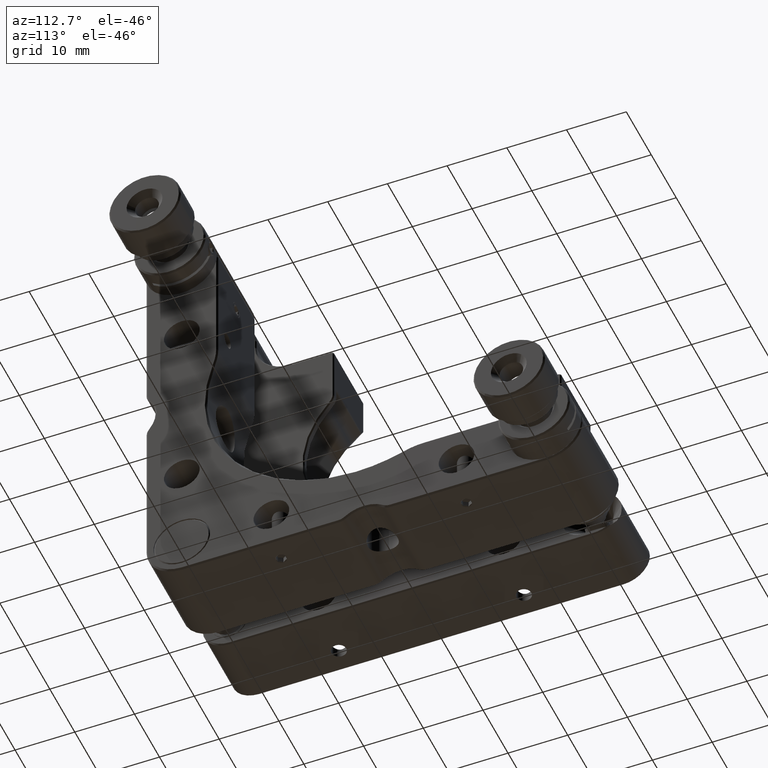
[diagram: clean part render]
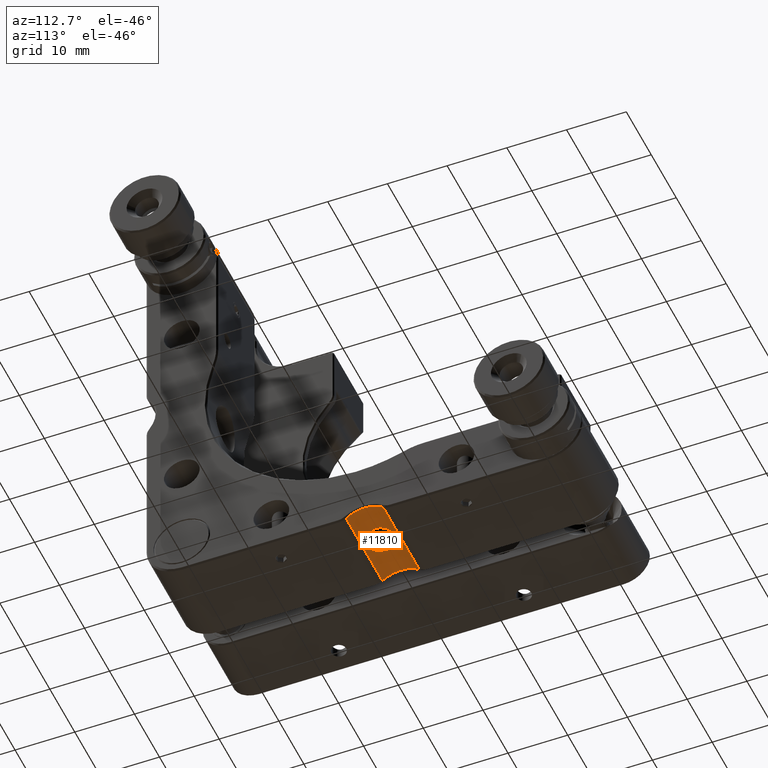
[diagram: same view with one face highlighted and labeled with its STEP entity id]
A machine part, auxiliary view. The second image highlights one B-rep face of the part: STEP entity #11810.
In plain terms, the highlighted cylindrical surface (edge-blend (fillet) strip) has radius 5 mm, axis along (1, -0, -0).
Its self-contained STEP definition (entity closure, byte-faithful):
#108 = CARTESIAN_POINT ( 'NONE',  ( 9.187188013801176112, -0.05283407788156702783, 16.83953641697612369 ) ) ;
#278 = VECTOR ( 'NONE', #5974, 1000.000000000000000 ) ;
#370 = EDGE_CURVE ( 'NONE', #15149, #10453, #15140, .T. ) ;
#440 = ORIENTED_EDGE ( 'NONE', *, *, #7388, .T. ) ;
#589 = CARTESIAN_POINT ( 'NONE',  ( 9.507574504345543076, -1.650234098752397127, 16.99153709374237309 ) ) ;
#734 = CARTESIAN_POINT ( 'NONE',  ( 9.524380677085801494, -1.485315575609315930, 16.99999999999998934 ) ) ;
#738 = ORIENTED_EDGE ( 'NONE', *, *, #13335, .F. ) ;
#862 = VERTEX_POINT ( 'NONE', #4042 ) ;
#897 = AXIS2_PLACEMENT_3D ( 'NONE', #14599, #5420, #13742 ) ;
#1034 = CARTESIAN_POINT ( 'NONE',  ( 5.029910170563820060, -2.858176075366870350, 16.76275093176226960 ) ) ;
#1043 = CARTESIAN_POINT ( 'NONE',  ( 8.904703386388161945, 0.3383471481233426559, 16.71958017371221672 ) ) ;
#1134 = B_SPLINE_CURVE_WITH_KNOTS ( 'NONE', 3,
 ( #10601, #8409, #10832, #12973, #3697, #7151, #4578, #1205, #7309, #4879, #2450, #6042, #8486, #13204, #2209, #3392, #9348, #8184, #12094, #2367, #13048, #5898, #6990, #1043, #2289, #108, #4654, #5820, #9650, #3469, #8255, #14459 ),
 .UNSPECIFIED., .F., .F.,
 ( 4, 2, 2, 2, 2, 2, 2, 2, 2, 2, 2, 2, 2, 2, 2, 4 ),
 ( 0.007952457144059373387, 0.008448620157723641874, 0.008944783171387912096, 0.009440946185052180584, 0.009937109198716449071, 0.01043327221238071929, 0.01092943522604498778, 0.01142559823970925800, 0.01192176125337352649, 0.01241792426703779498, 0.01291408728070206346, 0.01390641330803060391, 0.01440257632169487760, 0.01489873933535915129, 0.01539490234902342498, 0.01589106536268769868 ),
 .UNSPECIFIED. ) ;
#1205 = CARTESIAN_POINT ( 'NONE',  ( 5.041222260438631864, 0.2136643951420795773, 16.76196354994728566 ) ) ;
#1206 = CARTESIAN_POINT ( 'NONE',  ( -0.4756193229141988943, -4.410019247611930204, 15.92857142857143060 ) ) ;
#1543 = CARTESIAN_POINT ( 'NONE',  ( -0.4756193229141988943, 1.775876493705471182, 15.92857142857143060 ) ) ;
#1597 = ORIENTED_EDGE ( 'NONE', *, *, #14563, .F. ) ;
#1872 = CARTESIAN_POINT ( 'NONE',  ( 14.27438067708578728, -4.410019247611930204, 15.92857142857143060 ) ) ;
#2048 = CARTESIAN_POINT ( 'NONE',  ( 5.906906470515533414, -3.559430608565857579, 16.46955614393485590 ) ) ;
#2202 = CARTESIAN_POINT ( 'NONE',  ( 5.370206976171012059, -3.198410910481542579, 16.63414086880752407 ) ) ;
#2209 = CARTESIAN_POINT ( 'NONE',  ( 6.363823616574082465, 1.099817325082050878, 16.37722421181168642 ) ) ;
#2249 = DIRECTION ( 'NONE',  ( -1.000000000000000000, -0.000000000000000000, -0.000000000000000000 ) ) ;
#2289 = CARTESIAN_POINT ( 'NONE',  ( 9.006742654885655952, 0.2146833400583695595, 16.76163167060564518 ) ) ;
#2367 = CARTESIAN_POINT ( 'NONE',  ( 7.680103842979014495, 1.101102801903699469, 16.37651042211203389 ) ) ;
#2450 = CARTESIAN_POINT ( 'NONE',  ( 5.496426341876877508, 0.6682302613748745124, 16.59002919120309016 ) ) ;
#2479 = CARTESIAN_POINT ( 'NONE',  ( -0.2256193229141847945, -4.410019247611930204, 15.92857142857143060 ) ) ;
#2749 = CIRCLE ( 'NONE', #15014, 4.999999999999997335 ) ;
#2799 = LINE ( 'NONE', #1543, #9331 ) ;
#3040 = VERTEX_POINT ( 'NONE', #2479 ) ;
#3167 = EDGE_CURVE ( 'NONE', #862, #15149, #2799, .T. ) ;
#3295 = CARTESIAN_POINT ( 'NONE',  ( 14.27438067708578728, -1.317071376953229622, 11.99999999999999645 ) ) ;
#3309 = CARTESIAN_POINT ( 'NONE',  ( 4.844484607941272003, -2.583552583517656487, 16.84660886903362709 ) ) ;
#3383 = CARTESIAN_POINT ( 'NONE',  ( 4.540749121589796822, -1.647763077172534896, 16.99175357950216636 ) ) ;
#3392 = CARTESIAN_POINT ( 'NONE',  ( 6.689953932519149049, 1.166040658524874818, 16.33999970250690836 ) ) ;
#3461 = CARTESIAN_POINT ( 'NONE',  ( 8.140534491773340875, -3.559962520653151330, 16.46927759592006879 ) ) ;
#3469 = CARTESIAN_POINT ( 'NONE',  ( 9.507123736127855551, -0.9803015213844314957, 16.99131096701585264 ) ) ;
#3697 = CARTESIAN_POINT ( 'NONE',  ( 4.655335511285953132, -0.5016585994929455561, 16.93550312343005970 ) ) ;
#4041 = CARTESIAN_POINT ( 'NONE',  ( 9.524380677085847680, -1.317071376953222739, 17.00000000000001421 ) ) ;
#4042 = CARTESIAN_POINT ( 'NONE',  ( -0.2256193229141847945, 1.775876493705471182, 15.92857142857143060 ) ) ;
#4180 = CARTESIAN_POINT ( 'NONE',  ( 8.282399793229510365, -3.483546098511181910, 16.50735166074635529 ) ) ;
#4221 = VERTEX_POINT ( 'NONE', #4041 ) ;
#4578 = CARTESIAN_POINT ( 'NONE',  ( 4.860796699807465870, -0.05414870206169488526, 16.83988379739055929 ) ) ;
#4654 = CARTESIAN_POINT ( 'NONE',  ( 9.266111511468990258, -0.1984549914249568447, 16.87567863888140707 ) ) ;
#4879 = CARTESIAN_POINT ( 'NONE',  ( 5.372842536461467589, 0.5666036594085024358, 16.63319344883835527 ) ) ;
#4881 = LINE ( 'NONE', #1206, #278 ) ;
#4900 = ORIENTED_EDGE ( 'NONE', *, *, #12396, .T. ) ;
#4972 = AXIS2_PLACEMENT_3D ( 'NONE', #5380, #6543, #6471 ) ;
#5074 = DIRECTION ( 'NONE',  ( 1.000000000000000000, -0.000000000000000000, -0.000000000000000000 ) ) ;
#5210 = CARTESIAN_POINT ( 'NONE',  ( 9.202555227483081524, -2.587026505532279419, 16.84581432591586747 ) ) ;
#5366 = CARTESIAN_POINT ( 'NONE',  ( 8.676660934519397017, -3.200065757834421820, 16.63346394425556340 ) ) ;
#5380 = CARTESIAN_POINT ( 'NONE',  ( -0.4756193229141988943, -1.317071376953229622, 11.99999999999999645 ) ) ;
#5420 = DIRECTION ( 'NONE',  ( -1.000000000000000000, -0.000000000000000000, -0.000000000000000000 ) ) ;
#5820 = CARTESIAN_POINT ( 'NONE',  ( 9.392564128582717942, -0.4995342879763270960, 16.93509654573889023 ) ) ;
#5898 = CARTESIAN_POINT ( 'NONE',  ( 8.290306580744845277, 0.8634778760426691235, 16.50171831003563483 ) ) ;
#5974 = DIRECTION ( 'NONE',  ( -1.000000000000000000, 0.000000000000000000, 0.000000000000000000 ) ) ;
#6042 = CARTESIAN_POINT ( 'NONE',  ( 5.764479923734036504, 0.8482732000911874515, 16.50789013108228787 ) ) ;
#6066 = EDGE_CURVE ( 'NONE', #3040, #11842, #2749, .T. ) ;
#6471 = DIRECTION ( 'NONE',  ( 0.000000000000000000, 0.000000000000000000, -1.000000000000000000 ) ) ;
#6543 = DIRECTION ( 'NONE',  ( 1.000000000000000000, -0.000000000000000000, -0.000000000000000000 ) ) ;
#6756 = CARTESIAN_POINT ( 'NONE',  ( 5.496090451325534865, -3.302135005388141309, 16.59013565034084081 ) ) ;
#6908 = CARTESIAN_POINT ( 'NONE',  ( 7.357280187397051030, -3.800308130907962045, 16.33992420980553106 ) ) ;
#6923 = VERTEX_POINT ( 'NONE', #8356 ) ;
#6982 = CARTESIAN_POINT ( 'NONE',  ( 4.655787792547534387, -2.133311615503040937, 16.93529633527371914 ) ) ;
#6990 = CARTESIAN_POINT ( 'NONE',  ( 8.562179957496745430, 0.6802441490233531729, 16.59022011746164083 ) ) ;
#7036 = DIRECTION ( 'NONE',  ( 0.000000000000000000, 1.778091562876228061E-15, -1.000000000000000000 ) ) ;
#7151 = CARTESIAN_POINT ( 'NONE',  ( 4.783182454491893942, -0.1971144481889856304, 16.87542670509425946 ) ) ;
#7309 = CARTESIAN_POINT ( 'NONE',  ( 5.145325685361611612, 0.3397213712882817260, 16.71908369986646647 ) ) ;
#7388 = EDGE_CURVE ( 'NONE', #10453, #3040, #4881, .T. ) ;
#7695 = B_SPLINE_CURVE_WITH_KNOTS ( 'NONE', 3,
 ( #8878, #734, #589, #12347, #7787, #5210, #9981, #5366, #10129, #4180, #3461, #11852, #14062, #6908, #14139, #8247, #15147, #11541, #13988, #2048, #12966, #6756, #2202, #1034, #3309, #6982, #11772, #3383, #8016, #8100 ),
 .UNSPECIFIED., .F., .F.,
 ( 4, 2, 2, 2, 2, 2, 2, 2, 2, 2, 2, 2, 2, 2, 4 ),
 ( 1.705336630678629287E-17, 0.0004970285715037277502, 0.0009940571430074385869, 0.001988114286014860694, 0.002485142857518570555, 0.002982171429022280416, 0.003479200000525990277, 0.003976228572029700571, 0.004473257143533410432, 0.004970285715037120293, 0.005467314286540830154, 0.005964342858044540015, 0.006958400001051957134, 0.007455428572555665261, 0.007952457144059373387 ),
 .UNSPECIFIED. ) ;
#7787 = CARTESIAN_POINT ( 'NONE',  ( 9.392752186882823651, -2.134153987056042645, 16.93518506600628726 ) ) ;
#8016 = CARTESIAN_POINT ( 'NONE',  ( 4.524380677085800606, -1.483066368061964013, 16.99999999999999289 ) ) ;
#8100 = CARTESIAN_POINT ( 'NONE',  ( 4.524380677085802382, -1.317071376953230288, 16.99999999999999289 ) ) ;
#8109 = ORIENTED_EDGE ( 'NONE', *, *, #3167, .T. ) ;
#8184 = CARTESIAN_POINT ( 'NONE',  ( 7.187019390578086586, 1.183106149572903387, 16.33002452401493798 ) ) ;
#8247 = CARTESIAN_POINT ( 'NONE',  ( 6.860415266733355111, -3.817230922111482183, 16.33003490553963388 ) ) ;
#8255 = CARTESIAN_POINT ( 'NONE',  ( 9.524380677085803271, -1.149120169673167213, 16.99999999999999645 ) ) ;
#8356 = CARTESIAN_POINT ( 'NONE',  ( 4.524380677085802382, -1.317071376953230288, 16.99999999999999289 ) ) ;
#8409 = CARTESIAN_POINT ( 'NONE',  ( 4.524380677085801494, -1.151365460304396571, 16.99999999999999645 ) ) ;
#8486 = CARTESIAN_POINT ( 'NONE',  ( 5.909037274277778806, 0.9262010811333457605, 16.46908353628975519 ) ) ;
#8878 = CARTESIAN_POINT ( 'NONE',  ( 9.524380677085847680, -1.317071376953222739, 17.00000000000001421 ) ) ;
#9331 = VECTOR ( 'NONE', #5074, 1000.000000000000000 ) ;
#9348 = CARTESIAN_POINT ( 'NONE',  ( 6.856329304637433175, 1.182748166832077397, 16.33023120528525496 ) ) ;
#9650 = CARTESIAN_POINT ( 'NONE',  ( 9.441005458449874155, -0.6557456637540834965, 16.95875462249688326 ) ) ;
#9920 = FACE_OUTER_BOUND ( 'NONE', #12993, .T. ) ;
#9981 = CARTESIAN_POINT ( 'NONE',  ( 9.017105754552858343, -2.860391925567095317, 16.76201486020488929 ) ) ;
#10129 = CARTESIAN_POINT ( 'NONE',  ( 8.551386393504211370, -3.303142462729895978, 16.58970079144865650 ) ) ;
#10428 = ORIENTED_EDGE ( 'NONE', *, *, #370, .T. ) ;
#10453 = VERTEX_POINT ( 'NONE', #1872 ) ;
#10505 = DIRECTION ( 'NONE',  ( 1.000000000000000000, 0.000000000000000000, 0.000000000000000000 ) ) ;
#10601 = CARTESIAN_POINT ( 'NONE',  ( 4.524380677085802382, -1.317071376953230288, 16.99999999999999289 ) ) ;
#10832 = CARTESIAN_POINT ( 'NONE',  ( 4.541330421501910131, -0.9827317773899539866, 16.99146499917815234 ) ) ;
#10868 = ORIENTED_EDGE ( 'NONE', *, *, #6066, .T. ) ;
#11398 = CIRCLE ( 'NONE', #897, 4.999999999999997335 ) ;
#11529 = EDGE_LOOP ( 'NONE', ( #738, #1597 ) ) ;
#11541 = CARTESIAN_POINT ( 'NONE',  ( 6.368307075109297166, -3.735088016192834814, 16.37659650336920336 ) ) ;
#11772 = CARTESIAN_POINT ( 'NONE',  ( 4.606633028754179904, -1.974550664107090681, 16.95930255036232737 ) ) ;
#11810 = ADVANCED_FACE ( 'NONE', ( #14866, #9920 ), #12520, .F. ) ;
#11842 = VERTEX_POINT ( 'NONE', #14791 ) ;
#11852 = CARTESIAN_POINT ( 'NONE',  ( 7.841062054035641715, -3.685486785844243052, 16.40404488655692461 ) ) ;
#12094 = CARTESIAN_POINT ( 'NONE',  ( 7.354723168730814109, 1.166557634753866202, 16.33970007792616741 ) ) ;
#12149 = AXIS2_PLACEMENT_3D ( 'NONE', #3295, #10505, #15055 ) ;
#12347 = CARTESIAN_POINT ( 'NONE',  ( 9.442209995727372629, -1.973844068875409530, 16.95934366509802516 ) ) ;
#12396 = EDGE_CURVE ( 'NONE', #11842, #862, #11398, .T. ) ;
#12520 = CYLINDRICAL_SURFACE ( 'NONE', #4972, 4.999999999999997335 ) ;
#12966 = CARTESIAN_POINT ( 'NONE',  ( 5.764551669104838183, -3.482476533901749605, 16.50786461683642514 ) ) ;
#12973 = CARTESIAN_POINT ( 'NONE',  ( 4.606963556841302321, -0.6587279966871607551, 16.95914204268405001 ) ) ;
#12993 = EDGE_LOOP ( 'NONE', ( #440, #10868, #4900, #8109, #10428 ) ) ;
#13048 = CARTESIAN_POINT ( 'NONE',  ( 7.836785852094907412, 1.052915688663880855, 16.40320644595734123 ) ) ;
#13204 = CARTESIAN_POINT ( 'NONE',  ( 6.207983417866278053, 1.051421338369325831, 16.40400059412006328 ) ) ;
#13281 = CARTESIAN_POINT ( 'NONE',  ( 14.27438067708578728, 1.775876493705471182, 15.92857142857143060 ) ) ;
#13335 = EDGE_CURVE ( 'NONE', #4221, #6923, #7695, .T. ) ;
#13742 = DIRECTION ( 'NONE',  ( 0.000000000000000000, 1.778091562876228061E-15, -1.000000000000000000 ) ) ;
#13988 = CARTESIAN_POINT ( 'NONE',  ( 6.209578299066393470, -3.686252799031779936, 16.40364467647675539 ) ) ;
#14062 = CARTESIAN_POINT ( 'NONE',  ( 7.681118966461011333, -3.734917873202654448, 16.37669112956605844 ) ) ;
#14139 = CARTESIAN_POINT ( 'NONE',  ( 7.193175728385952539, -3.816909499251261995, 16.33022047899907037 ) ) ;
#14459 = CARTESIAN_POINT ( 'NONE',  ( 9.524380677085847680, -1.317071376953222739, 17.00000000000001421 ) ) ;
#14498 = CARTESIAN_POINT ( 'NONE',  ( -0.2256193229141847945, -1.317071376953229622, 11.99999999999999645 ) ) ;
#14563 = EDGE_CURVE ( 'NONE', #6923, #4221, #1134, .T. ) ;
#14599 = CARTESIAN_POINT ( 'NONE',  ( -0.2256193229141847945, -1.317071376953229622, 11.99999999999999645 ) ) ;
#14791 = CARTESIAN_POINT ( 'NONE',  ( -0.2256193229141847945, -1.317071376953229622, 16.99999999999999289 ) ) ;
#14866 = FACE_BOUND ( 'NONE', #11529, .T. ) ;
#15014 = AXIS2_PLACEMENT_3D ( 'NONE', #14498, #2249, #7036 ) ;
#15055 = DIRECTION ( 'NONE',  ( 0.000000000000000000, 0.000000000000000000, -1.000000000000000000 ) ) ;
#15140 = CIRCLE ( 'NONE', #12149, 4.999999999999997335 ) ;
#15147 = CARTESIAN_POINT ( 'NONE',  ( 6.691864037057256631, -3.800349396618798448, 16.33989996405320255 ) ) ;
#15149 = VERTEX_POINT ( 'NONE', #13281 ) ;